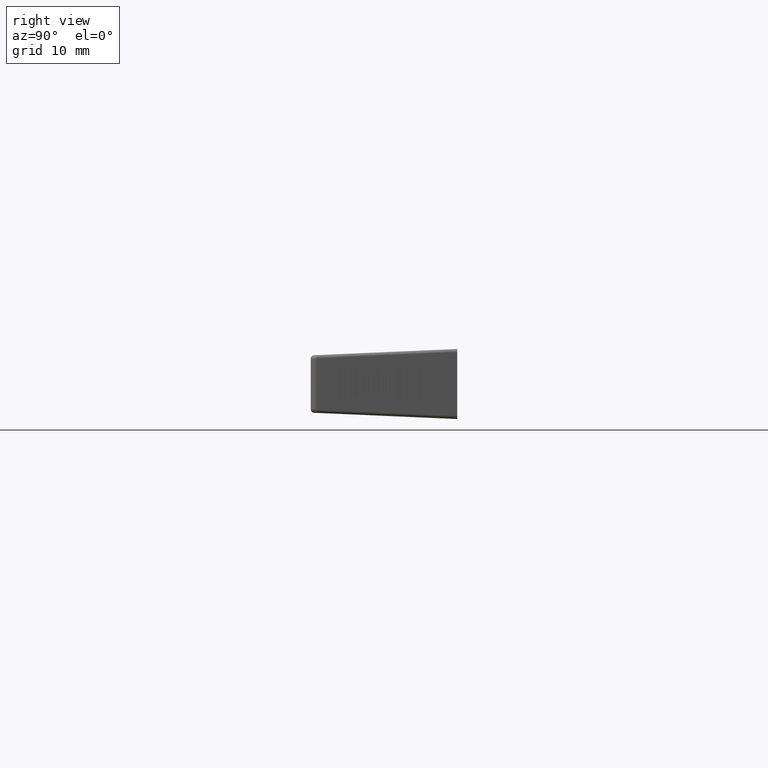
[diagram: clean part render]
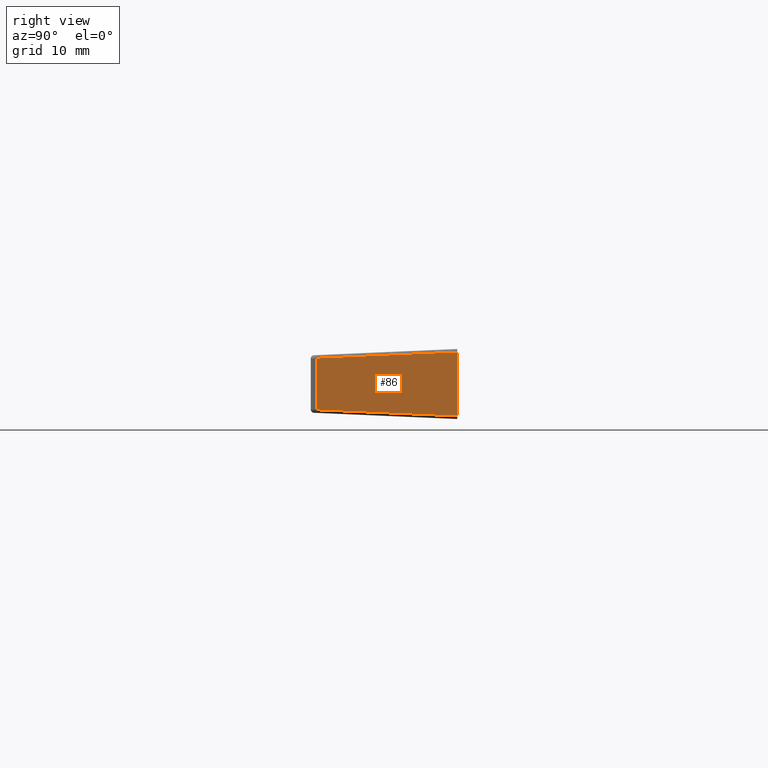
[diagram: same view with one face highlighted and labeled with its STEP entity id]
A machine part, right view. The second image highlights one B-rep face of the part: STEP entity #86.
In plain terms, the highlighted planar face has unit normal (-0.9991, 0.0434, 0).
Its self-contained STEP definition (entity closure, byte-faithful):
#86=ADVANCED_FACE('',(#228),#227,.F.);
#227=PLANE('',#665);
#228=FACE_OUTER_BOUND('',#666,.T.);
#662=CARTESIAN_POINT('',(5.60956018207E+001,-6.00056582789E+000,-2.20437189328E+000));
#663=DIRECTION('',(-9.99056953469E-001,0.00000000000E+000,-4.34189328015E-002));
#664=DIRECTION('',(-4.34189328015E-002,0.00000000000E+000,9.99056953469E-001));
#665=AXIS2_PLACEMENT_3D('',#662,#663,#664);
#666=EDGE_LOOP('',(#989,#990,#991,#992));
#989=ORIENTED_EDGE('',*,*,#1146,.F.);
#990=ORIENTED_EDGE('',*,*,#1162,.T.);
#991=ORIENTED_EDGE('',*,*,#1163,.T.);
#992=ORIENTED_EDGE('',*,*,#1164,.T.);
#1146=EDGE_CURVE('',#1434,#1441,#1442,.T.);
#1162=EDGE_CURVE('',#1434,#1550,#1551,.T.);
#1163=EDGE_CURVE('',#1550,#1557,#1558,.T.);
#1164=EDGE_CURVE('',#1557,#1441,#1564,.T.);
#1434=VERTEX_POINT('',#2015);
#1441=VERTEX_POINT('',#2019);
#1442=LINE('',#2020,#2021);
#1550=VERTEX_POINT('',#2087);
#1551=LINE('',#2088,#2089);
#1557=VERTEX_POINT('',#2091);
#1558=LINE('',#2092,#2093);
#1564=LINE('',#2095,#2096);
#2015=CARTESIAN_POINT('',(5.59998000000E+001,5.00047152324E+000,0.00000000000E+000));
#2019=CARTESIAN_POINT('',(5.59998000000E+001,-5.00047152324E+000,0.00000000000E+000));
#2020=CARTESIAN_POINT('',(5.59998000000E+001,5.00047152324E+000,0.00000000000E+000));
#2021=VECTOR('',#2022,1.00009430465E+001);
#2022=DIRECTION('',(0.00000000000E+000,-1.00000000000E+000,0.00000000000E+000));
#2087=CARTESIAN_POINT('',(5.50417817932E+001,4.04223195291E+000,2.20437189328E+001));
#2088=CARTESIAN_POINT('',(5.59998000000E+001,5.00047152324E+000,-3.55271367880E-015));
#2089=VECTOR('',#2090,2.20853246829E+001);
#2090=DIRECTION('',(-4.33780449480E-002,-4.33880680537E-002,9.98116135912E-001));
#2091=CARTESIAN_POINT('',(5.50417817932E+001,-4.04223195291E+000,2.20437189328E+001));
#2092=CARTESIAN_POINT('',(5.50417817932E+001,4.04223195291E+000,2.20437189328E+001));
#2093=VECTOR('',#2094,8.08446390583E+000);
#2094=DIRECTION('',(0.00000000000E+000,-1.00000000000E+000,0.00000000000E+000));
#2095=CARTESIAN_POINT('',(5.50417817932E+001,-4.04223195291E+000,2.20437189328E+001));
#2096=VECTOR('',#2097,2.20853246829E+001);
#2097=DIRECTION('',(4.33780449480E-002,-4.33880680537E-002,-9.98116135912E-001));